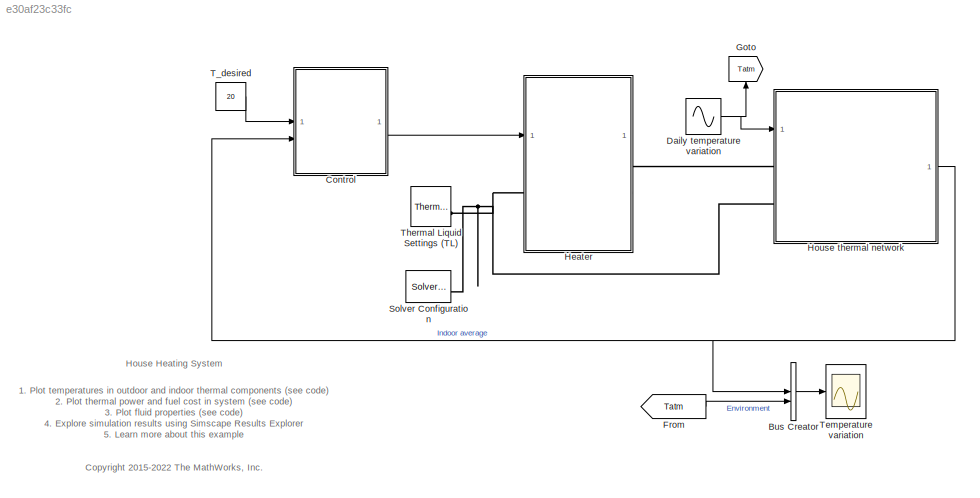
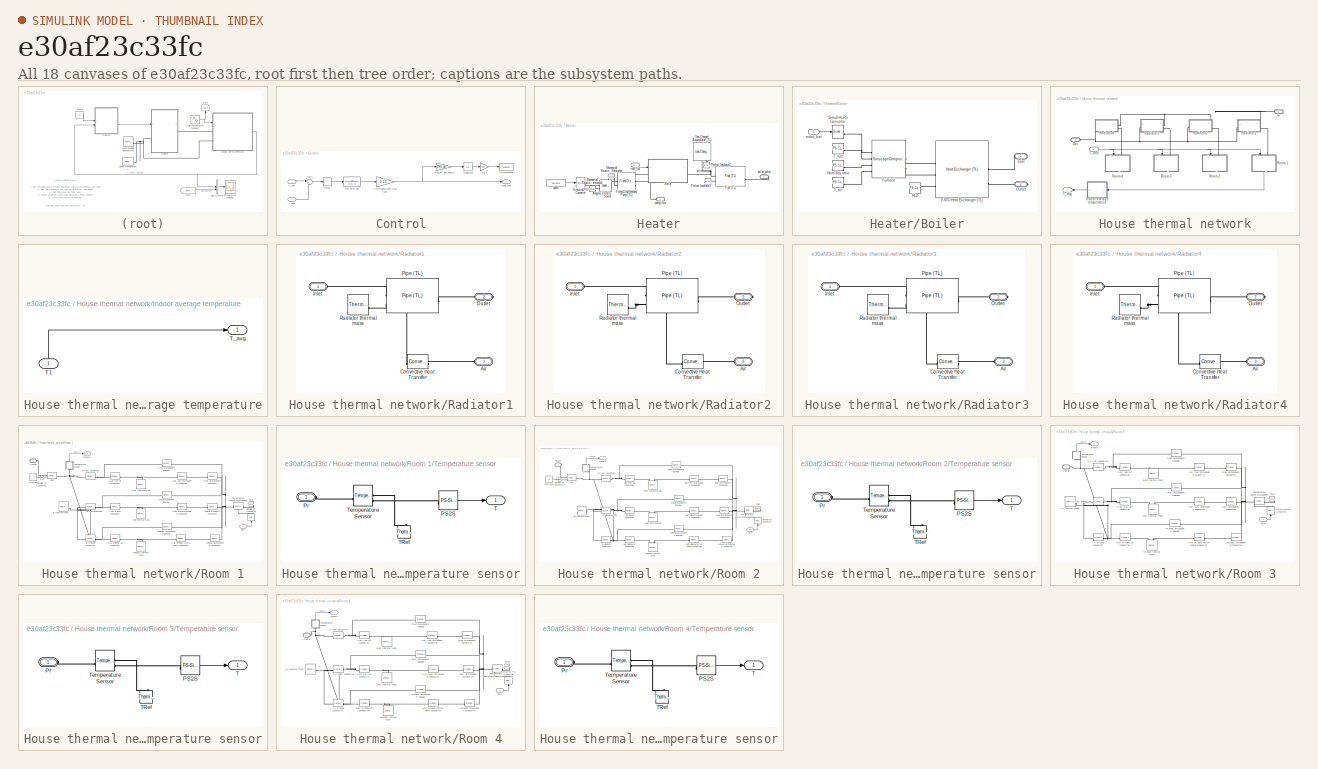
[diagram: thumbnail index - all 18 canvases of the model, root first then tree order]
MODEL slx_e30af23c33fc
KIND model
CONFIG AbsTol = 1e-3
CONFIG EnableMultiTasking = on
CONFIG FixedStep = 1
CONFIG InitFcn = % Roof\nroofArea =  2* (widHouse/(2*cos(pitRoof))*lenHouse);\n\n%Rooms\n%% Room 1\narea_window_room1 = 3 * 1 *1;\narea_wall_room1 = (lenHouse*3/5 *htHouse+widHouse*2/3*htHouse) - area_window_room1;\narea_roof_room1 = roofArea/4;\n\n%% Room 2\narea_window_room2 = 2 * 1 *1;\narea_wall_room2 = (lenHouse*3/5*htHouse+widHouse/3*htHouse) - area_window_room2;\narea_roof_room2 = roofArea/4;\n\n%% Room 3\narea_window_roo...<+507ch>
CONFIG MaxStep = auto
CONFIG MinStep = auto
CONFIG PreLoadFcn = % Walls\nlenHouse   = 30;          % House length [m]\nwidHouse   = 10;          % House width [m]\nhtHouse     = 4;            % House height [m]\nLWall           = 0.2;         % Wall thickness [m]\nwallDensity = 1920;      % Density [kg/m^3]\nc_wall          = 835;        % Specific heat [J/kg/K]\nkWall            = 0.038;    % Thermal conductivity [W/m/K]\n\n% Windows\nn1_window       = 3;          % Nu...<+1775ch>
CONFIG RelTol = 1e-3
CONFIG SampleTimeConstraint = Unconstrained
CONFIG SolverName = VariableStepAuto
CONFIG StartTime = 0
CONFIG StopTime = 3600*24
BLOCK [BusCreator] Bus Creator
  DisplayOption = bar
  InheritFromInputs = on
  Inputs = 2
BLOCK [SubSystem] Control
BLOCK [Gain] Control/1//Natural gas density
  Gain = 1/NG_density
  OutDataTypeStr = Inherit: Same as input
  ParamDataTypeStr = Inherit: Same as input
  SaturateOnIntegerOverflow = on
BLOCK [Gain] Control/Gain
  Gain = cost
BLOCK [TransferFcn] Control/Gas valve lag
  Denominator = [0.5, 1]
BLOCK [Integrator] Control/Integrator
  NameLocation = top
BLOCK [Relay] Control/Relay
  OffSwitchValue = -2
  OnSwitchValue = 2
BLOCK [Sum] Control/Sum1
  Inputs = |+-
  NameLocation = top
BLOCK [Inport] Control/T_avg
  NameLocation = top
  Port = 2
BLOCK [Inport] Control/T_exp
BLOCK [ToWorkspace] Control/To Workspace
  FixptAsFi = on
  MaxDataPoints = inf
  SampleTime = -1
  VariableName = fuel_cost
BLOCK [Gain] Control/Valve open mass flow rate
  Gain = 0.15
  OutDataTypeStr = Inherit: Same as input
  ParamDataTypeStr = Inherit: Same as input
  SaturateOnIntegerOverflow = on
BLOCK [Outport] Control/mdot_fuel
  VectorParamsAs1DForOutWhenUnconnected = off
BLOCK [Sin] Daily temperature variation
  Amplitude = 10
  Frequency = 2*pi/(24*3600)
  Phase = -pi/2
  SampleTime = 0
BLOCK [From] From
  GotoTag = Tatm
BLOCK [Goto] Goto
  GotoTag = Tatm
  NameLocation = right
BLOCK [SubSystem] Heater
BLOCK [Reference] Heater/Angular Velocity Source  REF=fl_lib/Mechanical/Mechanical Sources/Ideal Angular
Velocity Source
  SourceBlock = fl_lib/Mechanical/Mechanical Sources/Ideal Angular\nVelocity Source
  SourceType = Ideal Angular\nVelocity Source
BLOCK [SubSystem] Heater/Boiler
BLOCK [Reference] Heater/Boiler/E-NTU Heat Exchanger (TL)  REF=SimscapeFluids_lib/Fluid Network
Interfaces/Heat Exchangers/Heat Exchanger (TL)
  SourceBlock = SimscapeFluids_lib/Fluid Network\nInterfaces/Heat Exchangers/Heat Exchanger (TL)
  SourceType = Heat Exchanger (TL)
BLOCK [SimscapeComponentBlock] Heater/Boiler/Furnace
  ClassName = furnace
  ComponentPath = furnace
  ComponentVariantNames = furnace
  ComponentVariants = furnace
  CopyFcn = simscape.engine.sli.internal.componentblockcallback(gcbh,'COPY')
  InternalSimscapePortConfiguration = {"Bottom":[],"Left":[{"id":"Mdot_fuel","label":"MF","type":"input"},{"id":"T_fuel","label":"TF","type":"input"},{"id":"Humid_ratio","label":"HR","type":"input"},{"id":"T_air","label":"TS","type":"input"}],"Right":[{"id":"H","label":"H","type":"foundation.thermal.thermal"},{"id":"C_exh","label":"C_exh","type":"output"}],"Top":[]}
  LHV = 41e6
  LHV_conf = compiletime
  LHV_unit = J/kg
  MaskType = Furnace
  PreCopyFcn = simscape.engine.sli.internal.componentblockcallback(gcbh,'PRECOPY')
  PreDeleteFcn = simscape.engine.sli.internal.componentblockcallback(gcbh,'PREDELETE')
  SchemaVersion = 1
  SourceFile = furnace
  cp_air = 1005
  cp_air_conf = compiletime
  cp_air_unit = J/kg/K
  cp_fuel = 1880
  cp_fuel_conf = compiletime
  cp_fuel_unit = J/kg/K
  cp_vapor = 1820
  cp_vapor_conf = compiletime
  cp_vapor_unit = J/kg/K
  excess_air = 0.1
  excess_air_conf = compiletime
  excess_air_unit = 1
  mdot_fuel_min = 1e-5
  mdot_fuel_min_conf = compiletime
  mdot_fuel_min_unit = kg/s
  n = 3.95
  n_conf = compiletime
  n_unit = 1
BLOCK [Reference] Heater/Boiler/HC2  REF=fl_lib/Physical Signals/Sources/PS Constant
  SourceBlock = fl_lib/Physical Signals/Sources/PS Constant
  SourceType = PS Constant
BLOCK [Reference] Heater/Boiler/Humidity ratio  REF=fl_lib/Physical Signals/Sources/PS Constant
  SourceBlock = fl_lib/Physical Signals/Sources/PS Constant
  SourceType = PS Constant
BLOCK [PMIOPort] Heater/Boiler/Inlet
  Side = Left
BLOCK [PMIOPort] Heater/Boiler/Outlet
  Port = 2
  Side = Right
BLOCK [Reference] Heater/Boiler/Simulink-PS Converter  REF=nesl_utility/Simulink-PS
Converter
  SourceBlock = nesl_utility/Simulink-PS\nConverter
  SourceType = Simulink-PS\nConverter
BLOCK [Reference] Heater/Boiler/T_air  REF=fl_lib/Physical Signals/Sources/PS Constant
  SourceBlock = fl_lib/Physical Signals/Sources/PS Constant
  SourceType = PS Constant
BLOCK [Reference] Heater/Boiler/T_fuel  REF=fl_lib/Physical Signals/Sources/PS Constant
  SourceBlock = fl_lib/Physical Signals/Sources/PS Constant
  SourceType = PS Constant
BLOCK [Inport] Heater/Boiler/mdot_fuel
BLOCK [Reference] Heater/Fixed-Displacement Pump (TL)  REF=SimscapeFluids_lib/Thermal Liquid/Pumps & Motors/Fixed-Displacement
Pump (TL)
  SourceBlock = SimscapeFluids_lib/Thermal Liquid/Pumps & Motors/Fixed-Displacement\nPump (TL)
  SourceType = Fixed-Displacement\nPump (TL)
BLOCK [Reference] Heater/Gas-Charged Accumulator (TL)  REF=SimscapeFluids_lib/Thermal Liquid/Tanks & Accumulators/Gas-Charged
Accumulator (TL)
  NameLocation = right
  SourceBlock = SimscapeFluids_lib/Thermal Liquid/Tanks & Accumulators/Gas-Charged\nAccumulator (TL)
  SourceType = Gas-Charged\nAccumulator (TL)
BLOCK [Reference] Heater/Mechanical Rotational Reference  REF=fl_lib/Mechanical/Rotational Elements/Mechanical
Rotational Reference
  SourceBlock = fl_lib/Mechanical/Rotational Elements/Mechanical\nRotational Reference
  SourceType = Mechanical\nRotational Reference
BLOCK [Reference] Heater/Mechanical Rotational Reference1  REF=fl_lib/Mechanical/Rotational Elements/Mechanical
Rotational Reference
  SourceBlock = fl_lib/Mechanical/Rotational Elements/Mechanical\nRotational Reference
  SourceType = Mechanical\nRotational Reference
BLOCK [Reference] Heater/Perfect Insulator1  REF=fl_lib/Thermal/Thermal Elements/Perfect Insulator
  NameLocation = left
  SourceBlock = fl_lib/Thermal/Thermal Elements/Perfect Insulator
  SourceType = Perfect Insulator
BLOCK [Reference] Heater/Perfect Insulator3  REF=fl_lib/Thermal/Thermal Elements/Perfect Insulator
  NameLocation = top
  SourceBlock = fl_lib/Thermal/Thermal Elements/Perfect Insulator
  SourceType = Perfect Insulator
BLOCK [Reference] Heater/Pipe (TL)  REF=SimscapeFluids_lib/Thermal Liquid/Pipes & Fittings/Pipe (TL)
  NameLocation = top
  SourceBlock = SimscapeFluids_lib/Thermal Liquid/Pipes & Fittings/Pipe (TL)
  SourceType = Pipe (TL)
BLOCK [Reference] Heater/Simulink-PS Converter  REF=nesl_utility/Simulink-PS
Converter
  SourceBlock = nesl_utility/Simulink-PS\nConverter
  SourceType = Simulink-PS\nConverter
BLOCK [PMIOPort] Heater/boiler_outlet
  Port = 2
  Side = Right
BLOCK [Inport] Heater/mdot_fuel
BLOCK [PMIOPort] Heater/pump_inlet
  Side = Left
BLOCK [Constant] Heater/speed
  Value = 150*30/pi
BLOCK [SubSystem] House thermal network
BLOCK [PMIOPort] House thermal network/In
  NameLocation = top
  Side = Left
BLOCK [SubSystem] House thermal network/Indoor average temperature
BLOCK [Inport] House thermal network/Indoor average temperature/T1
  NameLocation = right
BLOCK [Outport] House thermal network/Indoor average temperature/T_avg
  NameLocation = top
  VectorParamsAs1DForOutWhenUnconnected = off
BLOCK [PMIOPort] House thermal network/Out
  Port = 2
  Side = Left
BLOCK [SubSystem] House thermal network/Radiator1
BLOCK [PMIOPort] House thermal network/Radiator1/Air
  NameLocation = top
  Port = 3
  Side = Left
BLOCK [Reference] House thermal network/Radiator1/Convective Heat Transfer  REF=fl_lib/Thermal/Thermal Elements/Convective Heat
Transfer
  NameLocation = top
  SourceBlock = fl_lib/Thermal/Thermal Elements/Convective Heat\nTransfer
  SourceType = Convective Heat\nTransfer
BLOCK [PMIOPort] House thermal network/Radiator1/Inlet
  Side = Left
BLOCK [PMIOPort] House thermal network/Radiator1/Outlet
  Port = 2
  Side = Right
BLOCK [Reference] House thermal network/Radiator1/Pipe (TL)  REF=SimscapeFluids_lib/Thermal Liquid/Pipes & Fittings/Pipe (TL)
  SourceBlock = SimscapeFluids_lib/Thermal Liquid/Pipes & Fittings/Pipe (TL)
  SourceType = Pipe (TL)
BLOCK [Reference] House thermal network/Radiator1/Radiator thermal mass  REF=fl_lib/Thermal/Thermal Elements/Thermal Mass
  SourceBlock = fl_lib/Thermal/Thermal Elements/Thermal Mass
  SourceType = Thermal Mass
BLOCK [SubSystem] House thermal network/Radiator2
BLOCK [PMIOPort] House thermal network/Radiator2/Air
  NameLocation = top
  Port = 3
  Side = Left
BLOCK [Reference] House thermal network/Radiator2/Convective Heat Transfer  REF=fl_lib/Thermal/Thermal Elements/Convective Heat
Transfer
  NameLocation = top
  SourceBlock = fl_lib/Thermal/Thermal Elements/Convective Heat\nTransfer
  SourceType = Convective Heat\nTransfer
BLOCK [PMIOPort] House thermal network/Radiator2/Inlet
  Side = Left
BLOCK [PMIOPort] House thermal network/Radiator2/Outlet
  Port = 2
  Side = Right
BLOCK [Reference] House thermal network/Radiator2/Pipe (TL)  REF=SimscapeFluids_lib/Thermal Liquid/Pipes & Fittings/Pipe (TL)
  SourceBlock = SimscapeFluids_lib/Thermal Liquid/Pipes & Fittings/Pipe (TL)
  SourceType = Pipe (TL)
BLOCK [Reference] House thermal network/Radiator2/Radiator thermal mass  REF=fl_lib/Thermal/Thermal Elements/Thermal Mass
  SourceBlock = fl_lib/Thermal/Thermal Elements/Thermal Mass
  SourceType = Thermal Mass
BLOCK [SubSystem] House thermal network/Radiator3
BLOCK [PMIOPort] House thermal network/Radiator3/Air
  NameLocation = top
  Port = 3
  Side = Left
BLOCK [Reference] House thermal network/Radiator3/Convective Heat Transfer  REF=fl_lib/Thermal/Thermal Elements/Convective Heat
Transfer
  NameLocation = top
  SourceBlock = fl_lib/Thermal/Thermal Elements/Convective Heat\nTransfer
  SourceType = Convective Heat\nTransfer
BLOCK [PMIOPort] House thermal network/Radiator3/Inlet
  Side = Left
BLOCK [PMIOPort] House thermal network/Radiator3/Outlet
  Port = 2
  Side = Right
BLOCK [Reference] House thermal network/Radiator3/Pipe (TL)  REF=SimscapeFluids_lib/Thermal Liquid/Pipes & Fittings/Pipe (TL)
  SourceBlock = SimscapeFluids_lib/Thermal Liquid/Pipes & Fittings/Pipe (TL)
  SourceType = Pipe (TL)
BLOCK [Reference] House thermal network/Radiator3/Radiator thermal mass  REF=fl_lib/Thermal/Thermal Elements/Thermal Mass
  SourceBlock = fl_lib/Thermal/Thermal Elements/Thermal Mass
  SourceType = Thermal Mass
BLOCK [SubSystem] House thermal network/Radiator4
BLOCK [PMIOPort] House thermal network/Radiator4/Air
  NameLocation = top
  Port = 3
  Side = Left
BLOCK [Reference] House thermal network/Radiator4/Convective Heat Transfer  REF=fl_lib/Thermal/Thermal Elements/Convective Heat
Transfer
  NameLocation = top
  SourceBlock = fl_lib/Thermal/Thermal Elements/Convective Heat\nTransfer
  SourceType = Convective Heat\nTransfer
BLOCK [PMIOPort] House thermal network/Radiator4/Inlet
  Side = Left
BLOCK [PMIOPort] House thermal network/Radiator4/Outlet
  Port = 2
  Side = Right
BLOCK [Reference] House thermal network/Radiator4/Pipe (TL)  REF=SimscapeFluids_lib/Thermal Liquid/Pipes & Fittings/Pipe (TL)
  SourceBlock = SimscapeFluids_lib/Thermal Liquid/Pipes & Fittings/Pipe (TL)
  SourceType = Pipe (TL)
BLOCK [Reference] House thermal network/Radiator4/Radiator thermal mass  REF=fl_lib/Thermal/Thermal Elements/Thermal Mass
  SourceBlock = fl_lib/Thermal/Thermal Elements/Thermal Mass
  SourceType = Thermal Mass
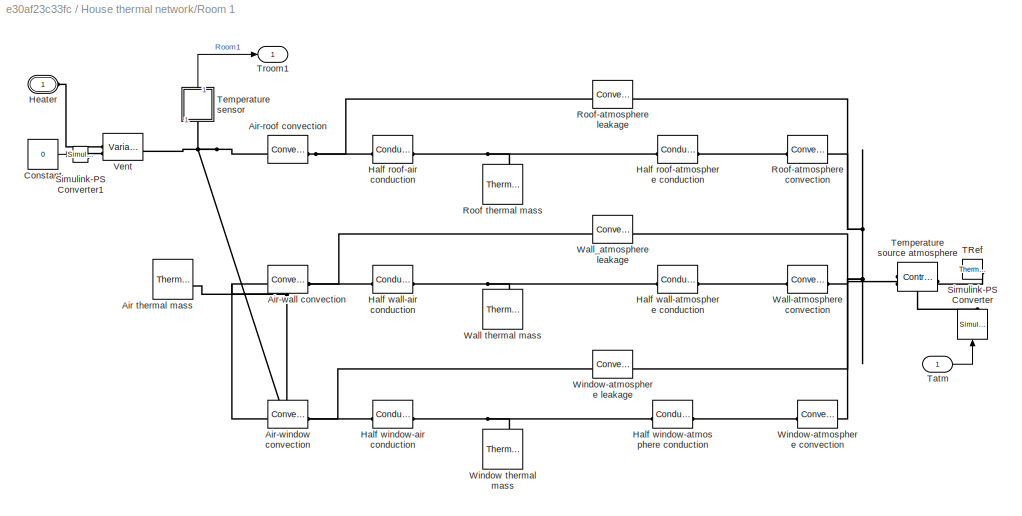
BLOCK [SubSystem] House thermal network/Room 1
  NameLocation = right
  Tag = PublishSubsystem
BLOCK [Reference] House thermal network/Room 1/Air thermal mass  REF=fl_lib/Thermal/Thermal Elements/Thermal Mass
  SourceBlock = fl_lib/Thermal/Thermal Elements/Thermal Mass
  SourceType = Thermal Mass
BLOCK [Reference] House thermal network/Room 1/Air-roof convection  REF=fl_lib/Thermal/Thermal Elements/Convective Heat
Transfer
  SourceBlock = fl_lib/Thermal/Thermal Elements/Convective Heat\nTransfer
  SourceType = Convective Heat\nTransfer
BLOCK [Reference] House thermal network/Room 1/Air-wall convection  REF=fl_lib/Thermal/Thermal Elements/Convective Heat
Transfer
  SourceBlock = fl_lib/Thermal/Thermal Elements/Convective Heat\nTransfer
  SourceType = Convective Heat\nTransfer
BLOCK [Reference] House thermal network/Room 1/Air-window convection  REF=fl_lib/Thermal/Thermal Elements/Convective Heat
Transfer
  SourceBlock = fl_lib/Thermal/Thermal Elements/Convective Heat\nTransfer
  SourceType = Convective Heat\nTransfer
BLOCK [Constant] House thermal network/Room 1/Constant
  Value = 0
BLOCK [Reference] House thermal network/Room 1/Half roof-air conduction  REF=fl_lib/Thermal/Thermal Elements/Conductive Heat
Transfer
  SourceBlock = fl_lib/Thermal/Thermal Elements/Conductive Heat\nTransfer
  SourceType = Conductive Heat\nTransfer
BLOCK [Reference] House thermal network/Room 1/Half roof-atmosphere conduction  REF=fl_lib/Thermal/Thermal Elements/Conductive Heat
Transfer
  SourceBlock = fl_lib/Thermal/Thermal Elements/Conductive Heat\nTransfer
  SourceType = Conductive Heat\nTransfer
BLOCK [Reference] House thermal network/Room 1/Half wall-air conduction  REF=fl_lib/Thermal/Thermal Elements/Conductive Heat
Transfer
  SourceBlock = fl_lib/Thermal/Thermal Elements/Conductive Heat\nTransfer
  SourceType = Conductive Heat\nTransfer
BLOCK [Reference] House thermal network/Room 1/Half wall-atmosphere conduction  REF=fl_lib/Thermal/Thermal Elements/Conductive Heat
Transfer
  SourceBlock = fl_lib/Thermal/Thermal Elements/Conductive Heat\nTransfer
  SourceType = Conductive Heat\nTransfer
BLOCK [Reference] House thermal network/Room 1/Half window-air conduction  REF=fl_lib/Thermal/Thermal Elements/Conductive Heat
Transfer
  SourceBlock = fl_lib/Thermal/Thermal Elements/Conductive Heat\nTransfer
  SourceType = Conductive Heat\nTransfer
BLOCK [Reference] House thermal network/Room 1/Half window-atmosphere conduction  REF=fl_lib/Thermal/Thermal Elements/Conductive Heat
Transfer
  SourceBlock = fl_lib/Thermal/Thermal Elements/Conductive Heat\nTransfer
  SourceType = Conductive Heat\nTransfer
BLOCK [PMIOPort] House thermal network/Room 1/Heater
  Side = Left
  Tag = PMCPort
BLOCK [Reference] House thermal network/Room 1/Roof thermal mass  REF=fl_lib/Thermal/Thermal Elements/Thermal Mass
  NameLocation = right
  SourceBlock = fl_lib/Thermal/Thermal Elements/Thermal Mass
  SourceType = Thermal Mass
BLOCK [Reference] House thermal network/Room 1/Roof-atmosphere convection  REF=fl_lib/Thermal/Thermal Elements/Convective Heat
Transfer
  SourceBlock = fl_lib/Thermal/Thermal Elements/Convective Heat\nTransfer
  SourceType = Convective Heat\nTransfer
BLOCK [Reference] House thermal network/Room 1/Roof-atmosphere leakage  REF=fl_lib/Thermal/Thermal Elements/Convective Heat
Transfer
  SourceBlock = fl_lib/Thermal/Thermal Elements/Convective Heat\nTransfer
  SourceType = Convective Heat\nTransfer
BLOCK [Reference] House thermal network/Room 1/Simulink-PS Converter  REF=nesl_utility/Simulink-PS
Converter
  NameLocation = left
  SourceBlock = nesl_utility/Simulink-PS\nConverter
  SourceType = Simulink-PS\nConverter
BLOCK [Reference] House thermal network/Room 1/Simulink-PS Converter1  REF=nesl_utility/Simulink-PS
Converter
  SourceBlock = nesl_utility/Simulink-PS\nConverter
  SourceType = Simulink-PS\nConverter
BLOCK [Reference] House thermal network/Room 1/TRef  REF=fl_lib/Thermal/Thermal Elements/Thermal Reference
  NameLocation = top
  SourceBlock = fl_lib/Thermal/Thermal Elements/Thermal Reference
  SourceType = Thermal Reference
BLOCK [Inport] House thermal network/Room 1/Tatm
BLOCK [SubSystem] House thermal network/Room 1/Temperature sensor
  NameLocation = right
BLOCK [Reference] House thermal network/Room 1/Temperature sensor/PS2S  REF=nesl_utility/PS-Simulink
Converter
  SourceBlock = nesl_utility/PS-Simulink\nConverter
  SourceType = PS-Simulink\nConverter
BLOCK [PMIOPort] House thermal network/Room 1/Temperature sensor/Pr
  Side = Left
BLOCK [Outport] House thermal network/Room 1/Temperature sensor/T
  VectorParamsAs1DForOutWhenUnconnected = off
BLOCK [Reference] House thermal network/Room 1/Temperature sensor/TRef  REF=fl_lib/Thermal/Thermal Elements/Thermal Reference
  NameLocation = right
  SourceBlock = fl_lib/Thermal/Thermal Elements/Thermal Reference
  SourceType = Thermal Reference
BLOCK [Reference] House thermal network/Room 1/Temperature sensor/Temperature Sensor  REF=fl_lib/Thermal/Thermal Sensors/Temperature Sensor
  SourceBlock = fl_lib/Thermal/Thermal Sensors/Temperature Sensor
  SourceType = Temperature Sensor
BLOCK [Reference] House thermal network/Room 1/Temperature source atmosphere  REF=fl_lib/Thermal/Thermal Sources/Controlled
Temperature Source
  NameLocation = top
  SourceBlock = fl_lib/Thermal/Thermal Sources/Controlled\nTemperature Source
  SourceType = Controlled\nTemperature Source
BLOCK [Outport] House thermal network/Room 1/Troom1
  VectorParamsAs1DForOutWhenUnconnected = off
BLOCK [Reference] House thermal network/Room 1/Vent  REF=fl_lib/Thermal/Thermal Elements/Variable Thermal
Resistance
  SourceBlock = fl_lib/Thermal/Thermal Elements/Variable Thermal\nResistance
  SourceType = Variable Thermal\nResistance
BLOCK [Reference] House thermal network/Room 1/Wall thermal mass  REF=fl_lib/Thermal/Thermal Elements/Thermal Mass
  NameLocation = right
  SourceBlock = fl_lib/Thermal/Thermal Elements/Thermal Mass
  SourceType = Thermal Mass
BLOCK [Reference] House thermal network/Room 1/Wall-atmosphere convection  REF=fl_lib/Thermal/Thermal Elements/Convective Heat
Transfer
  SourceBlock = fl_lib/Thermal/Thermal Elements/Convective Heat\nTransfer
  SourceType = Convective Heat\nTransfer
BLOCK [Reference] House thermal network/Room 1/Wall_atmosphere leakage  REF=fl_lib/Thermal/Thermal Elements/Convective Heat
Transfer
  SourceBlock = fl_lib/Thermal/Thermal Elements/Convective Heat\nTransfer
  SourceType = Convective Heat\nTransfer
BLOCK [Reference] House thermal network/Room 1/Window thermal mass  REF=fl_lib/Thermal/Thermal Elements/Thermal Mass
  NameLocation = right
  SourceBlock = fl_lib/Thermal/Thermal Elements/Thermal Mass
  SourceType = Thermal Mass
BLOCK [Reference] House thermal network/Room 1/Window-atmosphere convection  REF=fl_lib/Thermal/Thermal Elements/Convective Heat
Transfer
  SourceBlock = fl_lib/Thermal/Thermal Elements/Convective Heat\nTransfer
  SourceType = Convective Heat\nTransfer
BLOCK [Reference] House thermal network/Room 1/Window-atmosphere leakage  REF=fl_lib/Thermal/Thermal Elements/Convective Heat
Transfer
  SourceBlock = fl_lib/Thermal/Thermal Elements/Convective Heat\nTransfer
  SourceType = Convective Heat\nTransfer
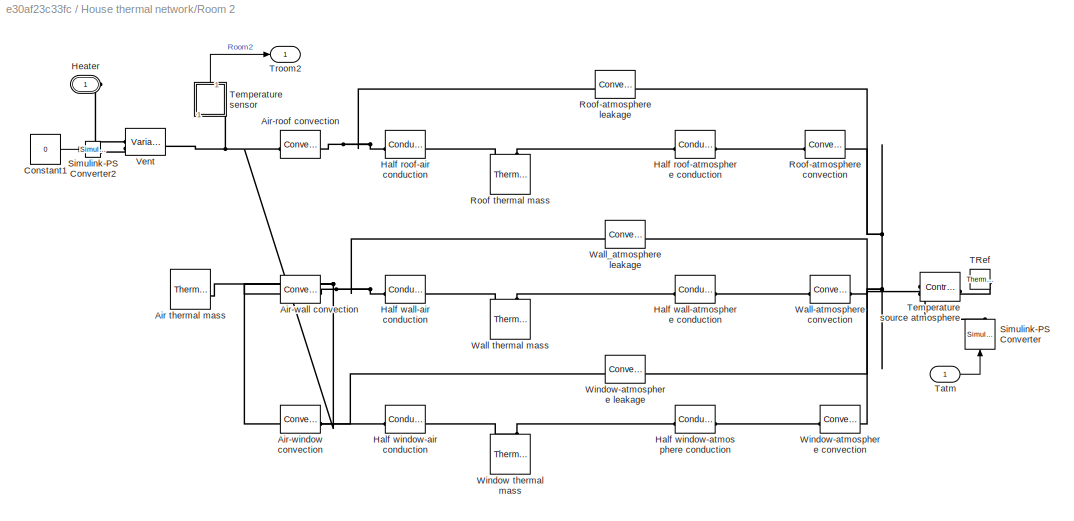
BLOCK [SubSystem] House thermal network/Room 2
  NameLocation = right
  Tag = PublishSubsystem
BLOCK [Reference] House thermal network/Room 2/Air thermal mass  REF=fl_lib/Thermal/Thermal Elements/Thermal Mass
  SourceBlock = fl_lib/Thermal/Thermal Elements/Thermal Mass
  SourceType = Thermal Mass
BLOCK [Reference] House thermal network/Room 2/Air-roof convection  REF=fl_lib/Thermal/Thermal Elements/Convective Heat
Transfer
  SourceBlock = fl_lib/Thermal/Thermal Elements/Convective Heat\nTransfer
  SourceType = Convective Heat\nTransfer
BLOCK [Reference] House thermal network/Room 2/Air-wall convection  REF=fl_lib/Thermal/Thermal Elements/Convective Heat
Transfer
  SourceBlock = fl_lib/Thermal/Thermal Elements/Convective Heat\nTransfer
  SourceType = Convective Heat\nTransfer
BLOCK [Reference] House thermal network/Room 2/Air-window convection  REF=fl_lib/Thermal/Thermal Elements/Convective Heat
Transfer
  SourceBlock = fl_lib/Thermal/Thermal Elements/Convective Heat\nTransfer
  SourceType = Convective Heat\nTransfer
BLOCK [Constant] House thermal network/Room 2/Constant1
  Value = 0
BLOCK [Reference] House thermal network/Room 2/Half roof-air conduction  REF=fl_lib/Thermal/Thermal Elements/Conductive Heat
Transfer
  SourceBlock = fl_lib/Thermal/Thermal Elements/Conductive Heat\nTransfer
  SourceType = Conductive Heat\nTransfer
BLOCK [Reference] House thermal network/Room 2/Half roof-atmosphere conduction  REF=fl_lib/Thermal/Thermal Elements/Conductive Heat
Transfer
  SourceBlock = fl_lib/Thermal/Thermal Elements/Conductive Heat\nTransfer
  SourceType = Conductive Heat\nTransfer
BLOCK [Reference] House thermal network/Room 2/Half wall-air conduction  REF=fl_lib/Thermal/Thermal Elements/Conductive Heat
Transfer
  SourceBlock = fl_lib/Thermal/Thermal Elements/Conductive Heat\nTransfer
  SourceType = Conductive Heat\nTransfer
BLOCK [Reference] House thermal network/Room 2/Half wall-atmosphere conduction  REF=fl_lib/Thermal/Thermal Elements/Conductive Heat
Transfer
  SourceBlock = fl_lib/Thermal/Thermal Elements/Conductive Heat\nTransfer
  SourceType = Conductive Heat\nTransfer
BLOCK [Reference] House thermal network/Room 2/Half window-air conduction  REF=fl_lib/Thermal/Thermal Elements/Conductive Heat
Transfer
  SourceBlock = fl_lib/Thermal/Thermal Elements/Conductive Heat\nTransfer
  SourceType = Conductive Heat\nTransfer
BLOCK [Reference] House thermal network/Room 2/Half window-atmosphere conduction  REF=fl_lib/Thermal/Thermal Elements/Conductive Heat
Transfer
  SourceBlock = fl_lib/Thermal/Thermal Elements/Conductive Heat\nTransfer
  SourceType = Conductive Heat\nTransfer
BLOCK [PMIOPort] House thermal network/Room 2/Heater
  Side = Left
  Tag = PMCPort
BLOCK [Reference] House thermal network/Room 2/Roof thermal mass  REF=fl_lib/Thermal/Thermal Elements/Thermal Mass
  NameLocation = right
  SourceBlock = fl_lib/Thermal/Thermal Elements/Thermal Mass
  SourceType = Thermal Mass
BLOCK [Reference] House thermal network/Room 2/Roof-atmosphere convection  REF=fl_lib/Thermal/Thermal Elements/Convective Heat
Transfer
  SourceBlock = fl_lib/Thermal/Thermal Elements/Convective Heat\nTransfer
  SourceType = Convective Heat\nTransfer
BLOCK [Reference] House thermal network/Room 2/Roof-atmosphere leakage  REF=fl_lib/Thermal/Thermal Elements/Convective Heat
Transfer
  SourceBlock = fl_lib/Thermal/Thermal Elements/Convective Heat\nTransfer
  SourceType = Convective Heat\nTransfer
BLOCK [Reference] House thermal network/Room 2/Simulink-PS Converter  REF=nesl_utility/Simulink-PS
Converter
  NameLocation = left
  SourceBlock = nesl_utility/Simulink-PS\nConverter
  SourceType = Simulink-PS\nConverter
BLOCK [Reference] House thermal network/Room 2/Simulink-PS Converter2  REF=nesl_utility/Simulink-PS
Converter
  SourceBlock = nesl_utility/Simulink-PS\nConverter
  SourceType = Simulink-PS\nConverter
BLOCK [Reference] House thermal network/Room 2/TRef  REF=fl_lib/Thermal/Thermal Elements/Thermal Reference
  NameLocation = top
  SourceBlock = fl_lib/Thermal/Thermal Elements/Thermal Reference
  SourceType = Thermal Reference
BLOCK [Inport] House thermal network/Room 2/Tatm
BLOCK [SubSystem] House thermal network/Room 2/Temperature sensor
  NameLocation = right
BLOCK [Reference] House thermal network/Room 2/Temperature sensor/PS2S  REF=nesl_utility/PS-Simulink
Converter
  SourceBlock = nesl_utility/PS-Simulink\nConverter
  SourceType = PS-Simulink\nConverter
BLOCK [PMIOPort] House thermal network/Room 2/Temperature sensor/Pr
  Side = Left
BLOCK [Outport] House thermal network/Room 2/Temperature sensor/T
  VectorParamsAs1DForOutWhenUnconnected = off
BLOCK [Reference] House thermal network/Room 2/Temperature sensor/TRef  REF=fl_lib/Thermal/Thermal Elements/Thermal Reference
  NameLocation = right
  SourceBlock = fl_lib/Thermal/Thermal Elements/Thermal Reference
  SourceType = Thermal Reference
BLOCK [Reference] House thermal network/Room 2/Temperature sensor/Temperature Sensor  REF=fl_lib/Thermal/Thermal Sensors/Temperature Sensor
  SourceBlock = fl_lib/Thermal/Thermal Sensors/Temperature Sensor
  SourceType = Temperature Sensor
BLOCK [Reference] House thermal network/Room 2/Temperature source atmosphere  REF=fl_lib/Thermal/Thermal Sources/Controlled
Temperature Source
  NameLocation = top
  SourceBlock = fl_lib/Thermal/Thermal Sources/Controlled\nTemperature Source
  SourceType = Controlled\nTemperature Source
BLOCK [Outport] House thermal network/Room 2/Troom2
  VectorParamsAs1DForOutWhenUnconnected = off
BLOCK [Reference] House thermal network/Room 2/Vent  REF=fl_lib/Thermal/Thermal Elements/Variable Thermal
Resistance
  SourceBlock = fl_lib/Thermal/Thermal Elements/Variable Thermal\nResistance
  SourceType = Variable Thermal\nResistance
BLOCK [Reference] House thermal network/Room 2/Wall thermal mass  REF=fl_lib/Thermal/Thermal Elements/Thermal Mass
  NameLocation = right
  SourceBlock = fl_lib/Thermal/Thermal Elements/Thermal Mass
  SourceType = Thermal Mass
BLOCK [Reference] House thermal network/Room 2/Wall-atmosphere convection  REF=fl_lib/Thermal/Thermal Elements/Convective Heat
Transfer
  SourceBlock = fl_lib/Thermal/Thermal Elements/Convective Heat\nTransfer
  SourceType = Convective Heat\nTransfer
BLOCK [Reference] House thermal network/Room 2/Wall_atmosphere leakage  REF=fl_lib/Thermal/Thermal Elements/Convective Heat
Transfer
  SourceBlock = fl_lib/Thermal/Thermal Elements/Convective Heat\nTransfer
  SourceType = Convective Heat\nTransfer
BLOCK [Reference] House thermal network/Room 2/Window thermal mass  REF=fl_lib/Thermal/Thermal Elements/Thermal Mass
  NameLocation = right
  SourceBlock = fl_lib/Thermal/Thermal Elements/Thermal Mass
  SourceType = Thermal Mass
BLOCK [Reference] House thermal network/Room 2/Window-atmosphere convection  REF=fl_lib/Thermal/Thermal Elements/Convective Heat
Transfer
  SourceBlock = fl_lib/Thermal/Thermal Elements/Convective Heat\nTransfer
  SourceType = Convective Heat\nTransfer
BLOCK [Reference] House thermal network/Room 2/Window-atmosphere leakage  REF=fl_lib/Thermal/Thermal Elements/Convective Heat
Transfer
  SourceBlock = fl_lib/Thermal/Thermal Elements/Convective Heat\nTransfer
  SourceType = Convective Heat\nTransfer
BLOCK [SubSystem] House thermal network/Room 3
  NameLocation = right
  Tag = PublishSubsystem
BLOCK [Reference] House thermal network/Room 3/Air thermal mass  REF=fl_lib/Thermal/Thermal Elements/Thermal Mass
  SourceBlock = fl_lib/Thermal/Thermal Elements/Thermal Mass
  SourceType = Thermal Mass
BLOCK [Reference] House thermal network/Room 3/Air-roof convection  REF=fl_lib/Thermal/Thermal Elements/Convective Heat
Transfer
  SourceBlock = fl_lib/Thermal/Thermal Elements/Convective Heat\nTransfer
  SourceType = Convective Heat\nTransfer
BLOCK [Reference] House thermal network/Room 3/Air-wall convection  REF=fl_lib/Thermal/Thermal Elements/Convective Heat
Transfer
  SourceBlock = fl_lib/Thermal/Thermal Elements/Convective Heat\nTransfer
  SourceType = Convective Heat\nTransfer
BLOCK [Reference] House thermal network/Room 3/Air-window convection  REF=fl_lib/Thermal/Thermal Elements/Convective Heat
Transfer
  SourceBlock = fl_lib/Thermal/Thermal Elements/Convective Heat\nTransfer
  SourceType = Convective Heat\nTransfer
BLOCK [Reference] House thermal network/Room 3/Half roof-air conduction  REF=fl_lib/Thermal/Thermal Elements/Conductive Heat
Transfer
  SourceBlock = fl_lib/Thermal/Thermal Elements/Conductive Heat\nTransfer
  SourceType = Conductive Heat\nTransfer
BLOCK [Reference] House thermal network/Room 3/Half roof-atmosphere conduction  REF=fl_lib/Thermal/Thermal Elements/Conductive Heat
Transfer
  SourceBlock = fl_lib/Thermal/Thermal Elements/Conductive Heat\nTransfer
  SourceType = Conductive Heat\nTransfer
BLOCK [Reference] House thermal network/Room 3/Half wall-air conduction  REF=fl_lib/Thermal/Thermal Elements/Conductive Heat
Transfer
  SourceBlock = fl_lib/Thermal/Thermal Elements/Conductive Heat\nTransfer
  SourceType = Conductive Heat\nTransfer
BLOCK [Reference] House thermal network/Room 3/Half wall-atmosphere conduction  REF=fl_lib/Thermal/Thermal Elements/Conductive Heat
Transfer
  SourceBlock = fl_lib/Thermal/Thermal Elements/Conductive Heat\nTransfer
  SourceType = Conductive Heat\nTransfer
BLOCK [Reference] House thermal network/Room 3/Half window-air conduction  REF=fl_lib/Thermal/Thermal Elements/Conductive Heat
Transfer
  SourceBlock = fl_lib/Thermal/Thermal Elements/Conductive Heat\nTransfer
  SourceType = Conductive Heat\nTransfer
BLOCK [Reference] House thermal network/Room 3/Half window-atmosphere conduction  REF=fl_lib/Thermal/Thermal Elements/Conductive Heat
Transfer
  SourceBlock = fl_lib/Thermal/Thermal Elements/Conductive Heat\nTransfer
  SourceType = Conductive Heat\nTransfer
BLOCK [PMIOPort] House thermal network/Room 3/Heater
  Side = Left
  Tag = PMCPort
BLOCK [Reference] House thermal network/Room 3/Roof thermal mass  REF=fl_lib/Thermal/Thermal Elements/Thermal Mass
  NameLocation = right
  SourceBlock = fl_lib/Thermal/Thermal Elements/Thermal Mass
  SourceType = Thermal Mass
BLOCK [Reference] House thermal network/Room 3/Roof-atmosphere convection  REF=fl_lib/Thermal/Thermal Elements/Convective Heat
Transfer
  SourceBlock = fl_lib/Thermal/Thermal Elements/Convective Heat\nTransfer
  SourceType = Convective Heat\nTransfer
BLOCK [Reference] House thermal network/Room 3/Roof-atmosphere leakage  REF=fl_lib/Thermal/Thermal Elements/Convective Heat
Transfer
  SourceBlock = fl_lib/Thermal/Thermal Elements/Convective Heat\nTransfer
  SourceType = Convective Heat\nTransfer
BLOCK [Reference] House thermal network/Room 3/Simulink-PS Converter  REF=nesl_utility/Simulink-PS
Converter
  NameLocation = left
  SourceBlock = nesl_utility/Simulink-PS\nConverter
  SourceType = Simulink-PS\nConverter
BLOCK [Reference] House thermal network/Room 3/TRef  REF=fl_lib/Thermal/Thermal Elements/Thermal Reference
  NameLocation = top
  SourceBlock = fl_lib/Thermal/Thermal Elements/Thermal Reference
  SourceType = Thermal Reference
BLOCK [Inport] House thermal network/Room 3/Tatm
BLOCK [SubSystem] House thermal network/Room 3/Temperature sensor
  NameLocation = right
BLOCK [Reference] House thermal network/Room 3/Temperature sensor/PS2S  REF=nesl_utility/PS-Simulink
Converter
  SourceBlock = nesl_utility/PS-Simulink\nConverter
  SourceType = PS-Simulink\nConverter
BLOCK [PMIOPort] House thermal network/Room 3/Temperature sensor/Pr
  Side = Left
BLOCK [Outport] House thermal network/Room 3/Temperature sensor/T
  VectorParamsAs1DForOutWhenUnconnected = off
BLOCK [Reference] House thermal network/Room 3/Temperature sensor/TRef  REF=fl_lib/Thermal/Thermal Elements/Thermal Reference
  NameLocation = right
  SourceBlock = fl_lib/Thermal/Thermal Elements/Thermal Reference
  SourceType = Thermal Reference
BLOCK [Reference] House thermal network/Room 3/Temperature sensor/Temperature Sensor  REF=fl_lib/Thermal/Thermal Sensors/Temperature Sensor
  SourceBlock = fl_lib/Thermal/Thermal Sensors/Temperature Sensor
  SourceType = Temperature Sensor
BLOCK [Reference] House thermal network/Room 3/Temperature source atmosphere  REF=fl_lib/Thermal/Thermal Sources/Controlled
Temperature Source
  NameLocation = top
  SourceBlock = fl_lib/Thermal/Thermal Sources/Controlled\nTemperature Source
  SourceType = Controlled\nTemperature Source
BLOCK [Outport] House thermal network/Room 3/Troom3
  VectorParamsAs1DForOutWhenUnconnected = off
BLOCK [Reference] House thermal network/Room 3/Wall thermal mass  REF=fl_lib/Thermal/Thermal Elements/Thermal Mass
  NameLocation = right
  SourceBlock = fl_lib/Thermal/Thermal Elements/Thermal Mass
  SourceType = Thermal Mass
BLOCK [Reference] House thermal network/Room 3/Wall-atmosphere convection  REF=fl_lib/Thermal/Thermal Elements/Convective Heat
Transfer
  SourceBlock = fl_lib/Thermal/Thermal Elements/Convective Heat\nTransfer
  SourceType = Convective Heat\nTransfer
BLOCK [Reference] House thermal network/Room 3/Wall_atmosphere leakage  REF=fl_lib/Thermal/Thermal Elements/Convective Heat
Transfer
  SourceBlock = fl_lib/Thermal/Thermal Elements/Convective Heat\nTransfer
  SourceType = Convective Heat\nTransfer
BLOCK [Reference] House thermal network/Room 3/Window thermal mass  REF=fl_lib/Thermal/Thermal Elements/Thermal Mass
  NameLocation = right
  SourceBlock = fl_lib/Thermal/Thermal Elements/Thermal Mass
  SourceType = Thermal Mass
BLOCK [Reference] House thermal network/Room 3/Window-atmosphere convection  REF=fl_lib/Thermal/Thermal Elements/Convective Heat
Transfer
  SourceBlock = fl_lib/Thermal/Thermal Elements/Convective Heat\nTransfer
  SourceType = Convective Heat\nTransfer
BLOCK [Reference] House thermal network/Room 3/Window-atmosphere leakage  REF=fl_lib/Thermal/Thermal Elements/Convective Heat
Transfer
  SourceBlock = fl_lib/Thermal/Thermal Elements/Convective Heat\nTransfer
  SourceType = Convective Heat\nTransfer
BLOCK [SubSystem] House thermal network/Room 4
  NameLocation = right
  Tag = PublishSubsystem
BLOCK [Reference] House thermal network/Room 4/Air thermal mass  REF=fl_lib/Thermal/Thermal Elements/Thermal Mass
  SourceBlock = fl_lib/Thermal/Thermal Elements/Thermal Mass
  SourceType = Thermal Mass
BLOCK [Reference] House thermal network/Room 4/Air-roof convection  REF=fl_lib/Thermal/Thermal Elements/Convective Heat
Transfer
  SourceBlock = fl_lib/Thermal/Thermal Elements/Convective Heat\nTransfer
  SourceType = Convective Heat\nTransfer
BLOCK [Reference] House thermal network/Room 4/Air-wall convection  REF=fl_lib/Thermal/Thermal Elements/Convective Heat
Transfer
  SourceBlock = fl_lib/Thermal/Thermal Elements/Convective Heat\nTransfer
  SourceType = Convective Heat\nTransfer
BLOCK [Reference] House thermal network/Room 4/Air-window convection  REF=fl_lib/Thermal/Thermal Elements/Convective Heat
Transfer
  SourceBlock = fl_lib/Thermal/Thermal Elements/Convective Heat\nTransfer
  SourceType = Convective Heat\nTransfer
BLOCK [Reference] House thermal network/Room 4/Half roof-air conduction  REF=fl_lib/Thermal/Thermal Elements/Conductive Heat
Transfer
  SourceBlock = fl_lib/Thermal/Thermal Elements/Conductive Heat\nTransfer
  SourceType = Conductive Heat\nTransfer
BLOCK [Reference] House thermal network/Room 4/Half roof-atmosphere conduction  REF=fl_lib/Thermal/Thermal Elements/Conductive Heat
Transfer
  SourceBlock = fl_lib/Thermal/Thermal Elements/Conductive Heat\nTransfer
  SourceType = Conductive Heat\nTransfer
BLOCK [Reference] House thermal network/Room 4/Half wall-air conduction  REF=fl_lib/Thermal/Thermal Elements/Conductive Heat
Transfer
  SourceBlock = fl_lib/Thermal/Thermal Elements/Conductive Heat\nTransfer
  SourceType = Conductive Heat\nTransfer
BLOCK [Reference] House thermal network/Room 4/Half wall-atmosphere conduction  REF=fl_lib/Thermal/Thermal Elements/Conductive Heat
Transfer
  SourceBlock = fl_lib/Thermal/Thermal Elements/Conductive Heat\nTransfer
  SourceType = Conductive Heat\nTransfer
BLOCK [Reference] House thermal network/Room 4/Half window-air conduction  REF=fl_lib/Thermal/Thermal Elements/Conductive Heat
Transfer
  SourceBlock = fl_lib/Thermal/Thermal Elements/Conductive Heat\nTransfer
  SourceType = Conductive Heat\nTransfer
BLOCK [Reference] House thermal network/Room 4/Half window-atmosphere conduction  REF=fl_lib/Thermal/Thermal Elements/Conductive Heat
Transfer
  SourceBlock = fl_lib/Thermal/Thermal Elements/Conductive Heat\nTransfer
  SourceType = Conductive Heat\nTransfer
BLOCK [PMIOPort] House thermal network/Room 4/Heater
  Side = Left
  Tag = PMCPort
BLOCK [Reference] House thermal network/Room 4/Roof thermal mass  REF=fl_lib/Thermal/Thermal Elements/Thermal Mass
  NameLocation = right
  SourceBlock = fl_lib/Thermal/Thermal Elements/Thermal Mass
  SourceType = Thermal Mass
BLOCK [Reference] House thermal network/Room 4/Roof-atmosphere convection  REF=fl_lib/Thermal/Thermal Elements/Convective Heat
Transfer
  SourceBlock = fl_lib/Thermal/Thermal Elements/Convective Heat\nTransfer
  SourceType = Convective Heat\nTransfer
BLOCK [Reference] House thermal network/Room 4/Roof-atmosphere leakage  REF=fl_lib/Thermal/Thermal Elements/Convective Heat
Transfer
  SourceBlock = fl_lib/Thermal/Thermal Elements/Convective Heat\nTransfer
  SourceType = Convective Heat\nTransfer
BLOCK [Reference] House thermal network/Room 4/Simulink-PS Converter  REF=nesl_utility/Simulink-PS
Converter
  NameLocation = left
  SourceBlock = nesl_utility/Simulink-PS\nConverter
  SourceType = Simulink-PS\nConverter
BLOCK [Reference] House thermal network/Room 4/TRef  REF=fl_lib/Thermal/Thermal Elements/Thermal Reference
  NameLocation = top
  SourceBlock = fl_lib/Thermal/Thermal Elements/Thermal Reference
  SourceType = Thermal Reference
BLOCK [Inport] House thermal network/Room 4/Tatm
BLOCK [SubSystem] House thermal network/Room 4/Temperature sensor
  NameLocation = right
BLOCK [Reference] House thermal network/Room 4/Temperature sensor/PS2S  REF=nesl_utility/PS-Simulink
Converter
  SourceBlock = nesl_utility/PS-Simulink\nConverter
  SourceType = PS-Simulink\nConverter
BLOCK [PMIOPort] House thermal network/Room 4/Temperature sensor/Pr
  Side = Left
BLOCK [Outport] House thermal network/Room 4/Temperature sensor/T
  VectorParamsAs1DForOutWhenUnconnected = off
BLOCK [Reference] House thermal network/Room 4/Temperature sensor/TRef  REF=fl_lib/Thermal/Thermal Elements/Thermal Reference
  NameLocation = right
  SourceBlock = fl_lib/Thermal/Thermal Elements/Thermal Reference
  SourceType = Thermal Reference
BLOCK [Reference] House thermal network/Room 4/Temperature sensor/Temperature Sensor  REF=fl_lib/Thermal/Thermal Sensors/Temperature Sensor
  SourceBlock = fl_lib/Thermal/Thermal Sensors/Temperature Sensor
  SourceType = Temperature Sensor
BLOCK [Reference] House thermal network/Room 4/Temperature source atmosphere  REF=fl_lib/Thermal/Thermal Sources/Controlled
Temperature Source
  NameLocation = top
  SourceBlock = fl_lib/Thermal/Thermal Sources/Controlled\nTemperature Source
  SourceType = Controlled\nTemperature Source
BLOCK [Outport] House thermal network/Room 4/Troom4
  VectorParamsAs1DForOutWhenUnconnected = off
BLOCK [Reference] House thermal network/Room 4/Wall thermal mass  REF=fl_lib/Thermal/Thermal Elements/Thermal Mass
  NameLocation = right
  SourceBlock = fl_lib/Thermal/Thermal Elements/Thermal Mass
  SourceType = Thermal Mass
BLOCK [Reference] House thermal network/Room 4/Wall-atmosphere convection  REF=fl_lib/Thermal/Thermal Elements/Convective Heat
Transfer
  SourceBlock = fl_lib/Thermal/Thermal Elements/Convective Heat\nTransfer
  SourceType = Convective Heat\nTransfer
BLOCK [Reference] House thermal network/Room 4/Wall_atmosphere leakage  REF=fl_lib/Thermal/Thermal Elements/Convective Heat
Transfer
  SourceBlock = fl_lib/Thermal/Thermal Elements/Convective Heat\nTransfer
  SourceType = Convective Heat\nTransfer
BLOCK [Reference] House thermal network/Room 4/Window thermal mass  REF=fl_lib/Thermal/Thermal Elements/Thermal Mass
  NameLocation = right
  SourceBlock = fl_lib/Thermal/Thermal Elements/Thermal Mass
  SourceType = Thermal Mass
BLOCK [Reference] House thermal network/Room 4/Window-atmosphere convection  REF=fl_lib/Thermal/Thermal Elements/Convective Heat
Transfer
  SourceBlock = fl_lib/Thermal/Thermal Elements/Convective Heat\nTransfer
  SourceType = Convective Heat\nTransfer
BLOCK [Reference] House thermal network/Room 4/Window-atmosphere leakage  REF=fl_lib/Thermal/Thermal Elements/Convective Heat
Transfer
  SourceBlock = fl_lib/Thermal/Thermal Elements/Convective Heat\nTransfer
  SourceType = Convective Heat\nTransfer
BLOCK [Inport] House thermal network/T_atm
BLOCK [Outport] House thermal network/T_avg
  VectorParamsAs1DForOutWhenUnconnected = off
BLOCK [Reference] Solver Configuration  REF=nesl_utility/Solver
Configuration
  SourceBlock = nesl_utility/Solver\nConfiguration
  SourceType = Solver\nConfiguration
BLOCK [Constant] T_desired
  Value = 20
BLOCK [Scope] Temperature variation
  Floating = off
  NumInputPorts = 1
  ScopeSpecificationString = Simulink.scopes.TimeScopeBlockCfg('CurrentConfiguration', extmgr.ConfigurationSet(extmgr.Configuration('Core','General UI',true),extmgr.Configuration('Core','Source UI',true),extmgr.Configuration('Sources','WiredSimulink',true,'DataLoggingVariableName','ScopeData2'),extmgr.Configuration('Visuals','Time Domain',true,'SerializedDisplays',{struct('MinYLimReal','-4.28134','MaxYLimReal','28.53245','YLa...<+1541ch>
BLOCK [Reference] Thermal Liquid Settings (TL)  REF=fl_lib/Thermal Liquid/Utilities/Thermal Liquid
Settings (TL)
  SourceBlock = fl_lib/Thermal Liquid/Utilities/Thermal Liquid\nSettings (TL)
  SourceType = Thermal Liquid\nSettings (TL)
ANNOTATION (root): 1. Plot temperatures in outdoor and indoor thermal components (see code) 2. Plot thermal power and fuel cost in system (see code) 3. Plot fluid properties (see code) 4. Explore simulation results using Simscape Results Explorer 5. Learn more about this example
ANNOTATION (root): <copyright redacted>
ANNOTATION (root): House Heating System
LINE Bus Creator:1 -> Temperature variation:1
LINE Control/1//Natural gas density:1 -> Control/Integrator:1
LINE Control/Gain:1 -> Control/To Workspace:1
LINE Control/Gas valve lag:1 -> Control/Valve open mass flow rate:1
LINE Control/Integrator:1 -> Control/Gain:1
LINE Control/Relay:1 -> Control/Gas valve lag:1
LINE Control/Sum1:1 -> Control/Relay:1
LINE Control/T_avg:1 -> Control/Sum1:2
LINE Control/T_exp:1 -> Control/Sum1:1
NET Control/Valve open mass flow rate:1 -> Control/1//Natural gas density:1, Control/mdot_fuel:1
LINE Control:1 -> Heater:1
NET Daily temperature variation:1 -> Goto:1, House thermal network:1
LINE From:1 -> Bus Creator:2
LINE Heater/Boiler/mdot_fuel:1 -> Heater/Boiler/Simulink-PS Converter:1
LINE Heater/mdot_fuel:1 -> Heater/Boiler:1
LINE Heater/speed:1 -> Heater/Simulink-PS Converter:1
LINE House thermal network/Indoor average temperature/T1:1 -> House thermal network/Indoor average temperature/T_avg:1
LINE House thermal network/Indoor average temperature:1 -> House thermal network/T_avg:1
LINE House thermal network/Room 1/Constant:1 -> House thermal network/Room 1/Simulink-PS Converter1:1
LINE House thermal network/Room 1/Tatm:1 -> House thermal network/Room 1/Simulink-PS Converter:1
LINE House thermal network/Room 1/Temperature sensor/PS2S:1 -> House thermal network/Room 1/Temperature sensor/T:1
LINE House thermal network/Room 1/Temperature sensor:1 -> House thermal network/Room 1/Troom1:1
LINE House thermal network/Room 1:1 -> House thermal network/Indoor average temperature:1
LINE House thermal network/Room 2/Constant1:1 -> House thermal network/Room 2/Simulink-PS Converter2:1
LINE House thermal network/Room 2/Tatm:1 -> House thermal network/Room 2/Simulink-PS Converter:1
LINE House thermal network/Room 2/Temperature sensor/PS2S:1 -> House thermal network/Room 2/Temperature sensor/T:1
LINE House thermal network/Room 2/Temperature sensor:1 -> House thermal network/Room 2/Troom2:1
LINE House thermal network/Room 3/Tatm:1 -> House thermal network/Room 3/Simulink-PS Converter:1
LINE House thermal network/Room 3/Temperature sensor/PS2S:1 -> House thermal network/Room 3/Temperature sensor/T:1
LINE House thermal network/Room 3/Temperature sensor:1 -> House thermal network/Room 3/Troom3:1
LINE House thermal network/Room 4/Tatm:1 -> House thermal network/Room 4/Simulink-PS Converter:1
LINE House thermal network/Room 4/Temperature sensor/PS2S:1 -> House thermal network/Room 4/Temperature sensor/T:1
LINE House thermal network/Room 4/Temperature sensor:1 -> House thermal network/Room 4/Troom4:1
NET House thermal network/T_atm:1 -> House thermal network/Room 1:1, House thermal network/Room 2:1, House thermal network/Room 3:1, House thermal network/Room 4:1
NET House thermal network:1 -> Bus Creator:1, Control:2
LINE T_desired:1 -> Control:1
PLINE Heater/Angular Velocity Source:LConn1 -- Heater/Fixed-Displacement Pump (TL):RConn1
PLINE Heater/Angular Velocity Source:RConn1 -- Heater/Simulink-PS Converter:RConn1
PLINE Heater/Angular Velocity Source:RConn2 -- Heater/Mechanical Rotational Reference1:LConn1
PLINE Heater/Boiler/E-NTU Heat Exchanger (TL):LConn1 -- Heater/Boiler/Inlet:RConn1
PLINE Heater/Boiler/E-NTU Heat Exchanger (TL):LConn2 -- Heater/Boiler/Outlet:RConn1
PLINE Heater/Boiler/E-NTU Heat Exchanger (TL):RConn1 -- Heater/Boiler/Furnace:RConn1
PLINE Heater/Boiler/E-NTU Heat Exchanger (TL):RConn2 -- Heater/Boiler/Furnace:RConn2
PLINE Heater/Boiler/E-NTU Heat Exchanger (TL):RConn3 -- Heater/Boiler/HC2:RConn1
PLINE Heater/Boiler/Furnace:LConn1 -- Heater/Boiler/Simulink-PS Converter:RConn1
PLINE Heater/Boiler/Furnace:LConn2 -- Heater/Boiler/T_fuel:RConn1
PLINE Heater/Boiler/Furnace:LConn3 -- Heater/Boiler/Humidity ratio:RConn1
PLINE Heater/Boiler/Furnace:LConn4 -- Heater/Boiler/T_air:RConn1
PLINE Heater/Boiler:LConn1 -- Heater/Fixed-Displacement Pump (TL):LConn2
PNET net1: Heater/Boiler:RConn1 -- Heater/Gas-Charged Accumulator (TL):RConn1 -- Heater/Pipe (TL):LConn1
PLINE Heater/Fixed-Displacement Pump (TL):LConn1 -- Heater/pump_inlet:RConn1
PLINE Heater/Fixed-Displacement Pump (TL):RConn2 -- Heater/Mechanical Rotational Reference:LConn1
PLINE Heater/Gas-Charged Accumulator (TL):RConn2 -- Heater/Perfect Insulator1:LConn1
PLINE Heater/Perfect Insulator3:LConn1 -- Heater/Pipe (TL):LConn2
PLINE Heater/Pipe (TL):RConn1 -- Heater/boiler_outlet:RConn1
PNET net2: Heater:LConn1 -- House thermal network:LConn2 -- Solver Configuration:RConn1 -- Thermal Liquid Settings (TL):RConn1
PLINE Heater:RConn1 -- House thermal network:LConn1
PNET net3: House thermal network/In:RConn1 -- House thermal network/Radiator1:LConn1 -- House thermal network/Radiator2:LConn1 -- House thermal network/Radiator3:LConn1 -- House thermal network/Radiator4:LConn1
PNET net4: House thermal network/Out:RConn1 -- House thermal network/Radiator1:RConn1 -- House thermal network/Radiator2:RConn1 -- House thermal network/Radiator3:RConn1 -- House thermal network/Radiator4:RConn1
PLINE House thermal network/Radiator1/Air:RConn1 -- House thermal network/Radiator1/Convective Heat Transfer:RConn1
PNET net5: House thermal network/Radiator1/Convective Heat Transfer:LConn1 -- House thermal network/Radiator1/Pipe (TL):LConn2 -- House thermal network/Radiator1/Radiator thermal mass:LConn1
PLINE House thermal network/Radiator1/Inlet:RConn1 -- House thermal network/Radiator1/Pipe (TL):LConn1
PLINE House thermal network/Radiator1/Outlet:RConn1 -- House thermal network/Radiator1/Pipe (TL):RConn1
PLINE House thermal network/Radiator1:LConn2 -- House thermal network/Room 1:LConn1
PLINE House thermal network/Radiator2/Air:RConn1 -- House thermal network/Radiator2/Convective Heat Transfer:RConn1
PNET net6: House thermal network/Radiator2/Convective Heat Transfer:LConn1 -- House thermal network/Radiator2/Pipe (TL):LConn2 -- House thermal network/Radiator2/Radiator thermal mass:LConn1
PLINE House thermal network/Radiator2/Inlet:RConn1 -- House thermal network/Radiator2/Pipe (TL):LConn1
PLINE House thermal network/Radiator2/Outlet:RConn1 -- House thermal network/Radiator2/Pipe (TL):RConn1
PLINE House thermal network/Radiator2:LConn2 -- House thermal network/Room 2:LConn1
PLINE House thermal network/Radiator3/Air:RConn1 -- House thermal network/Radiator3/Convective Heat Transfer:RConn1
PNET net7: House thermal network/Radiator3/Convective Heat Transfer:LConn1 -- House thermal network/Radiator3/Pipe (TL):LConn2 -- House thermal network/Radiator3/Radiator thermal mass:LConn1
PLINE House thermal network/Radiator3/Inlet:RConn1 -- House thermal network/Radiator3/Pipe (TL):LConn1
PLINE House thermal network/Radiator3/Outlet:RConn1 -- House thermal network/Radiator3/Pipe (TL):RConn1
PLINE House thermal network/Radiator3:LConn2 -- House thermal network/Room 3:LConn1
PLINE House thermal network/Radiator4/Air:RConn1 -- House thermal network/Radiator4/Convective Heat Transfer:RConn1
PNET net8: House thermal network/Radiator4/Convective Heat Transfer:LConn1 -- House thermal network/Radiator4/Pipe (TL):LConn2 -- House thermal network/Radiator4/Radiator thermal mass:LConn1
PLINE House thermal network/Radiator4/Inlet:RConn1 -- House thermal network/Radiator4/Pipe (TL):LConn1
PLINE House thermal network/Radiator4/Outlet:RConn1 -- House thermal network/Radiator4/Pipe (TL):RConn1
PLINE House thermal network/Radiator4:LConn2 -- House thermal network/Room 4:LConn1
PNET net9: House thermal network/Room 1/Air thermal mass:LConn1 -- House thermal network/Room 1/Air-roof convection:LConn1 -- House thermal network/Room 1/Air-wall convection:LConn1 -- House thermal network/Room 1/Air-window convection:LConn1 -- House thermal network/Room 1/Temperature sensor:LConn1 -- House thermal network/Room 1/Vent:RConn1
PNET net10: House thermal network/Room 1/Air-roof convection:RConn1 -- House thermal network/Room 1/Half roof-air conduction:LConn1 -- House thermal network/Room 1/Roof-atmosphere leakage:LConn1
PNET net11: House thermal network/Room 1/Air-wall convection:RConn1 -- House thermal network/Room 1/Half wall-air conduction:LConn1 -- House thermal network/Room 1/Wall_atmosphere leakage:LConn1
PNET net12: House thermal network/Room 1/Air-window convection:RConn1 -- House thermal network/Room 1/Half window-air conduction:LConn1 -- House thermal network/Room 1/Window-atmosphere leakage:LConn1
PNET net13: House thermal network/Room 1/Half roof-air conduction:RConn1 -- House thermal network/Room 1/Half roof-atmosphere conduction:LConn1 -- House thermal network/Room 1/Roof thermal mass:LConn1
PLINE House thermal network/Room 1/Half roof-atmosphere conduction:RConn1 -- House thermal network/Room 1/Roof-atmosphere convection:LConn1
PNET net14: House thermal network/Room 1/Half wall-air conduction:RConn1 -- House thermal network/Room 1/Half wall-atmosphere conduction:LConn1 -- House thermal network/Room 1/Wall thermal mass:LConn1
PLINE House thermal network/Room 1/Half wall-atmosphere conduction:RConn1 -- House thermal network/Room 1/Wall-atmosphere convection:LConn1
PNET net15: House thermal network/Room 1/Half window-air conduction:RConn1 -- House thermal network/Room 1/Half window-atmosphere conduction:LConn1 -- House thermal network/Room 1/Window thermal mass:LConn1
PLINE House thermal network/Room 1/Half window-atmosphere conduction:RConn1 -- House thermal network/Room 1/Window-atmosphere convection:LConn1
PLINE House thermal network/Room 1/Heater:RConn1 -- House thermal network/Room 1/Vent:LConn1
PNET net16: House thermal network/Room 1/Roof-atmosphere convection:RConn1 -- House thermal network/Room 1/Roof-atmosphere leakage:RConn1 -- House thermal network/Room 1/Temperature source atmosphere:LConn1 -- House thermal network/Room 1/Wall-atmosphere convection:RConn1 -- House thermal network/Room 1/Wall_atmosphere leakage:RConn1 -- House thermal network/Room 1/Window-atmosphere convection:RConn1 -- House thermal network/Room 1/Window-atmosphere leakage:RConn1
PLINE House thermal network/Room 1/Simulink-PS Converter1:RConn1 -- House thermal network/Room 1/Vent:LConn2
PLINE House thermal network/Room 1/Simulink-PS Converter:RConn1 -- House thermal network/Room 1/Temperature source atmosphere:RConn1
PLINE House thermal network/Room 1/TRef:LConn1 -- House thermal network/Room 1/Temperature source atmosphere:RConn2
PLINE House thermal network/Room 1/Temperature sensor/PS2S:LConn1 -- House thermal network/Room 1/Temperature sensor/Temperature Sensor:RConn2
PLINE House thermal network/Room 1/Temperature sensor/Pr:RConn1 -- House thermal network/Room 1/Temperature sensor/Temperature Sensor:LConn1
PLINE House thermal network/Room 1/Temperature sensor/TRef:LConn1 -- House thermal network/Room 1/Temperature sensor/Temperature Sensor:RConn1
PNET net17: House thermal network/Room 2/Air thermal mass:LConn1 -- House thermal network/Room 2/Air-roof convection:LConn1 -- House thermal network/Room 2/Air-wall convection:LConn1 -- House thermal network/Room 2/Air-window convection:LConn1 -- House thermal network/Room 2/Temperature sensor:LConn1 -- House thermal network/Room 2/Vent:RConn1
PNET net18: House thermal network/Room 2/Air-roof convection:RConn1 -- House thermal network/Room 2/Half roof-air conduction:LConn1 -- House thermal network/Room 2/Roof-atmosphere leakage:LConn1
PNET net19: House thermal network/Room 2/Air-wall convection:RConn1 -- House thermal network/Room 2/Half wall-air conduction:LConn1 -- House thermal network/Room 2/Wall_atmosphere leakage:LConn1
PNET net20: House thermal network/Room 2/Air-window convection:RConn1 -- House thermal network/Room 2/Half window-air conduction:LConn1 -- House thermal network/Room 2/Window-atmosphere leakage:LConn1
PNET net21: House thermal network/Room 2/Half roof-air conduction:RConn1 -- House thermal network/Room 2/Half roof-atmosphere conduction:LConn1 -- House thermal network/Room 2/Roof thermal mass:LConn1
PLINE House thermal network/Room 2/Half roof-atmosphere conduction:RConn1 -- House thermal network/Room 2/Roof-atmosphere convection:LConn1
PNET net22: House thermal network/Room 2/Half wall-air conduction:RConn1 -- House thermal network/Room 2/Half wall-atmosphere conduction:LConn1 -- House thermal network/Room 2/Wall thermal mass:LConn1
PLINE House thermal network/Room 2/Half wall-atmosphere conduction:RConn1 -- House thermal network/Room 2/Wall-atmosphere convection:LConn1
PNET net23: House thermal network/Room 2/Half window-air conduction:RConn1 -- House thermal network/Room 2/Half window-atmosphere conduction:LConn1 -- House thermal network/Room 2/Window thermal mass:LConn1
PLINE House thermal network/Room 2/Half window-atmosphere conduction:RConn1 -- House thermal network/Room 2/Window-atmosphere convection:LConn1
PLINE House thermal network/Room 2/Heater:RConn1 -- House thermal network/Room 2/Vent:LConn1
PNET net24: House thermal network/Room 2/Roof-atmosphere convection:RConn1 -- House thermal network/Room 2/Roof-atmosphere leakage:RConn1 -- House thermal network/Room 2/Temperature source atmosphere:LConn1 -- House thermal network/Room 2/Wall-atmosphere convection:RConn1 -- House thermal network/Room 2/Wall_atmosphere leakage:RConn1 -- House thermal network/Room 2/Window-atmosphere convection:RConn1 -- House thermal network/Room 2/Window-atmosphere leakage:RConn1
PLINE House thermal network/Room 2/Simulink-PS Converter2:RConn1 -- House thermal network/Room 2/Vent:LConn2
PLINE House thermal network/Room 2/Simulink-PS Converter:RConn1 -- House thermal network/Room 2/Temperature source atmosphere:RConn1
PLINE House thermal network/Room 2/TRef:LConn1 -- House thermal network/Room 2/Temperature source atmosphere:RConn2
PLINE House thermal network/Room 2/Temperature sensor/PS2S:LConn1 -- House thermal network/Room 2/Temperature sensor/Temperature Sensor:RConn2
PLINE House thermal network/Room 2/Temperature sensor/Pr:RConn1 -- House thermal network/Room 2/Temperature sensor/Temperature Sensor:LConn1
PLINE House thermal network/Room 2/Temperature sensor/TRef:LConn1 -- House thermal network/Room 2/Temperature sensor/Temperature Sensor:RConn1
PNET net25: House thermal network/Room 3/Air thermal mass:LConn1 -- House thermal network/Room 3/Air-roof convection:LConn1 -- House thermal network/Room 3/Air-wall convection:LConn1 -- House thermal network/Room 3/Air-window convection:LConn1 -- House thermal network/Room 3/Heater:RConn1 -- House thermal network/Room 3/Temperature sensor:LConn1
PNET net26: House thermal network/Room 3/Air-roof convection:RConn1 -- House thermal network/Room 3/Half roof-air conduction:LConn1 -- House thermal network/Room 3/Roof-atmosphere leakage:LConn1
PNET net27: House thermal network/Room 3/Air-wall convection:RConn1 -- House thermal network/Room 3/Half wall-air conduction:LConn1 -- House thermal network/Room 3/Wall_atmosphere leakage:LConn1
PNET net28: House thermal network/Room 3/Air-window convection:RConn1 -- House thermal network/Room 3/Half window-air conduction:LConn1 -- House thermal network/Room 3/Window-atmosphere leakage:LConn1
PNET net29: House thermal network/Room 3/Half roof-air conduction:RConn1 -- House thermal network/Room 3/Half roof-atmosphere conduction:LConn1 -- House thermal network/Room 3/Roof thermal mass:LConn1
PLINE House thermal network/Room 3/Half roof-atmosphere conduction:RConn1 -- House thermal network/Room 3/Roof-atmosphere convection:LConn1
PNET net30: House thermal network/Room 3/Half wall-air conduction:RConn1 -- House thermal network/Room 3/Half wall-atmosphere conduction:LConn1 -- House thermal network/Room 3/Wall thermal mass:LConn1
PLINE House thermal network/Room 3/Half wall-atmosphere conduction:RConn1 -- House thermal network/Room 3/Wall-atmosphere convection:LConn1
PNET net31: House thermal network/Room 3/Half window-air conduction:RConn1 -- House thermal network/Room 3/Half window-atmosphere conduction:LConn1 -- House thermal network/Room 3/Window thermal mass:LConn1
PLINE House thermal network/Room 3/Half window-atmosphere conduction:RConn1 -- House thermal network/Room 3/Window-atmosphere convection:LConn1
PNET net32: House thermal network/Room 3/Roof-atmosphere convection:RConn1 -- House thermal network/Room 3/Roof-atmosphere leakage:RConn1 -- House thermal network/Room 3/Temperature source atmosphere:LConn1 -- House thermal network/Room 3/Wall-atmosphere convection:RConn1 -- House thermal network/Room 3/Wall_atmosphere leakage:RConn1 -- House thermal network/Room 3/Window-atmosphere convection:RConn1 -- House thermal network/Room 3/Window-atmosphere leakage:RConn1
PLINE House thermal network/Room 3/Simulink-PS Converter:RConn1 -- House thermal network/Room 3/Temperature source atmosphere:RConn1
PLINE House thermal network/Room 3/TRef:LConn1 -- House thermal network/Room 3/Temperature source atmosphere:RConn2
PLINE House thermal network/Room 3/Temperature sensor/PS2S:LConn1 -- House thermal network/Room 3/Temperature sensor/Temperature Sensor:RConn2
PLINE House thermal network/Room 3/Temperature sensor/Pr:RConn1 -- House thermal network/Room 3/Temperature sensor/Temperature Sensor:LConn1
PLINE House thermal network/Room 3/Temperature sensor/TRef:LConn1 -- House thermal network/Room 3/Temperature sensor/Temperature Sensor:RConn1
PNET net33: House thermal network/Room 4/Air thermal mass:LConn1 -- House thermal network/Room 4/Air-roof convection:LConn1 -- House thermal network/Room 4/Air-wall convection:LConn1 -- House thermal network/Room 4/Air-window convection:LConn1 -- House thermal network/Room 4/Heater:RConn1 -- House thermal network/Room 4/Temperature sensor:LConn1
PNET net34: House thermal network/Room 4/Air-roof convection:RConn1 -- House thermal network/Room 4/Half roof-air conduction:LConn1 -- House thermal network/Room 4/Roof-atmosphere leakage:LConn1
PNET net35: House thermal network/Room 4/Air-wall convection:RConn1 -- House thermal network/Room 4/Half wall-air conduction:LConn1 -- House thermal network/Room 4/Wall_atmosphere leakage:LConn1
PNET net36: House thermal network/Room 4/Air-window convection:RConn1 -- House thermal network/Room 4/Half window-air conduction:LConn1 -- House thermal network/Room 4/Window-atmosphere leakage:LConn1
PNET net37: House thermal network/Room 4/Half roof-air conduction:RConn1 -- House thermal network/Room 4/Half roof-atmosphere conduction:LConn1 -- House thermal network/Room 4/Roof thermal mass:LConn1
PLINE House thermal network/Room 4/Half roof-atmosphere conduction:RConn1 -- House thermal network/Room 4/Roof-atmosphere convection:LConn1
PNET net38: House thermal network/Room 4/Half wall-air conduction:RConn1 -- House thermal network/Room 4/Half wall-atmosphere conduction:LConn1 -- House thermal network/Room 4/Wall thermal mass:LConn1
PLINE House thermal network/Room 4/Half wall-atmosphere conduction:RConn1 -- House thermal network/Room 4/Wall-atmosphere convection:LConn1
PNET net39: House thermal network/Room 4/Half window-air conduction:RConn1 -- House thermal network/Room 4/Half window-atmosphere conduction:LConn1 -- House thermal network/Room 4/Window thermal mass:LConn1
PLINE House thermal network/Room 4/Half window-atmosphere conduction:RConn1 -- House thermal network/Room 4/Window-atmosphere convection:LConn1
PNET net40: House thermal network/Room 4/Roof-atmosphere convection:RConn1 -- House thermal network/Room 4/Roof-atmosphere leakage:RConn1 -- House thermal network/Room 4/Temperature source atmosphere:LConn1 -- House thermal network/Room 4/Wall-atmosphere convection:RConn1 -- House thermal network/Room 4/Wall_atmosphere leakage:RConn1 -- House thermal network/Room 4/Window-atmosphere convection:RConn1 -- House thermal network/Room 4/Window-atmosphere leakage:RConn1
PLINE House thermal network/Room 4/Simulink-PS Converter:RConn1 -- House thermal network/Room 4/Temperature source atmosphere:RConn1
PLINE House thermal network/Room 4/TRef:LConn1 -- House thermal network/Room 4/Temperature source atmosphere:RConn2
PLINE House thermal network/Room 4/Temperature sensor/PS2S:LConn1 -- House thermal network/Room 4/Temperature sensor/Temperature Sensor:RConn2
PLINE House thermal network/Room 4/Temperature sensor/Pr:RConn1 -- House thermal network/Room 4/Temperature sensor/Temperature Sensor:LConn1
PLINE House thermal network/Room 4/Temperature sensor/TRef:LConn1 -- House thermal network/Room 4/Temperature sensor/Temperature Sensor:RConn1
note: NET lines group one-source signal fan-out (src -> all destinations, sorted); 1:1 wires keep LINE; PNET lines group multi-terminal physical nets as a canonical sorted terminal list (undirected conserving connections); 2-terminal nets keep the pairwise PLINE form
